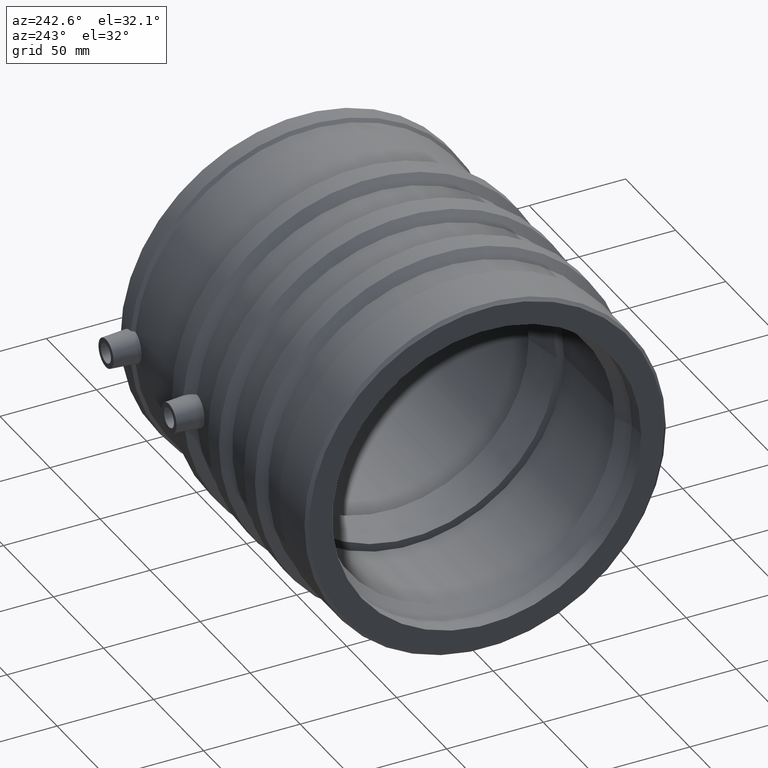
[diagram: clean part render]
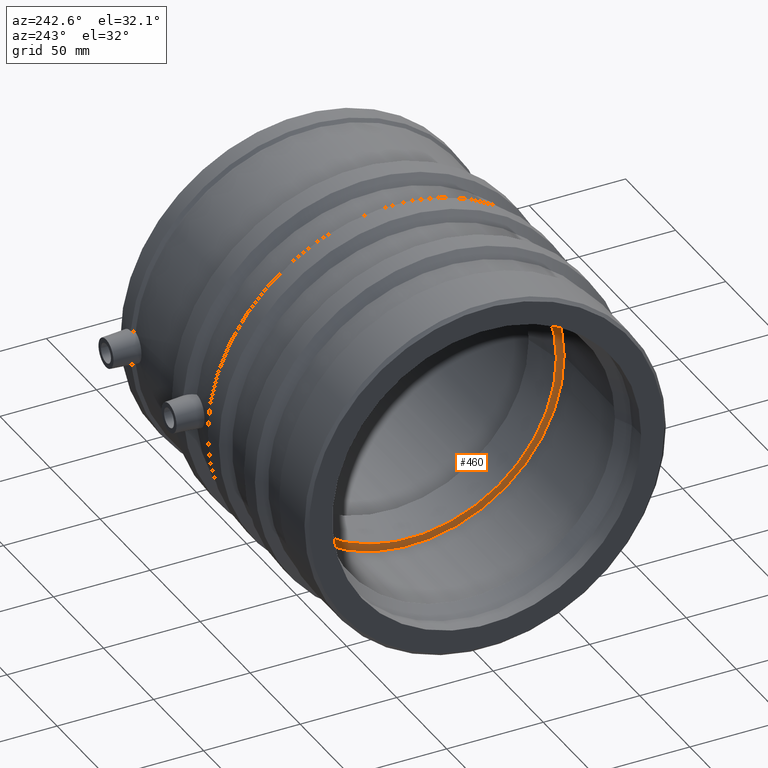
[diagram: same view with one face highlighted and labeled with its STEP entity id]
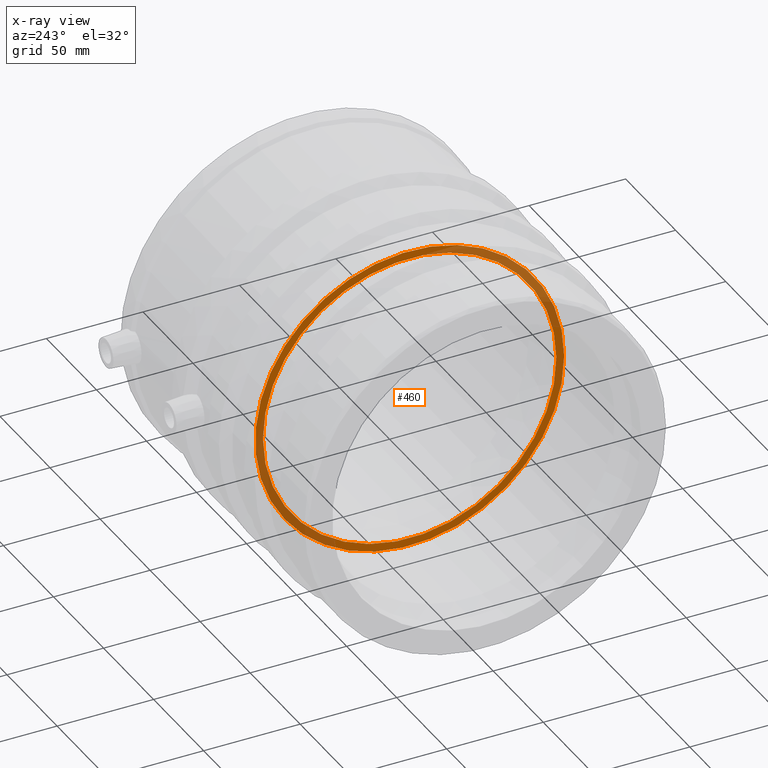
[diagram: x-ray of the same camera — body ghosted, the highlighted face saturated]
A machine part, auxiliary view. The second image highlights one B-rep face of the part: STEP entity #460.
The next image is the same camera in x-ray: the body ghosted, the highlighted face saturated — about 36% of this face is hidden behind the body in this view.
In plain terms, the highlighted planar face has unit normal (-1, -0, 0).
Its self-contained STEP definition (entity closure, byte-faithful):
#52=FACE_BOUND('',#164,.T.);
#107=FACE_OUTER_BOUND('',#163,.T.);
#163=EDGE_LOOP('',(#378));
#164=EDGE_LOOP('',(#379));
#226=CIRCLE('',#520,80.);
#227=CIRCLE('',#522,76.);
#271=VERTEX_POINT('',#879);
#272=VERTEX_POINT('',#882);
#316=EDGE_CURVE('',#271,#271,#226,.T.);
#317=EDGE_CURVE('',#272,#272,#227,.T.);
#378=ORIENTED_EDGE('',*,*,#316,.T.);
#379=ORIENTED_EDGE('',*,*,#317,.F.);
#439=PLANE('',#521);
#460=ADVANCED_FACE('',(#107,#52),#439,.T.);
#520=AXIS2_PLACEMENT_3D('',#880,#636,#637);
#521=AXIS2_PLACEMENT_3D('',#881,#638,#639);
#522=AXIS2_PLACEMENT_3D('',#883,#640,#641);
#636=DIRECTION('center_axis',(-1.,-1.83697019872103E-16,0.));
#637=DIRECTION('ref_axis',(0.,0.,1.));
#638=DIRECTION('center_axis',(-1.,-1.83697019872103E-16,0.));
#639=DIRECTION('ref_axis',(0.,0.,1.));
#640=DIRECTION('center_axis',(-1.,-1.83697019872103E-16,0.));
#641=DIRECTION('ref_axis',(0.,0.,1.));
#879=CARTESIAN_POINT('',(-16.5,-80.,0.));
#880=CARTESIAN_POINT('Origin',(-16.5,1.41446705301519E-14,0.));
#881=CARTESIAN_POINT('Origin',(-16.5,-76.,0.));
#882=CARTESIAN_POINT('',(-16.5,-76.,0.));
#883=CARTESIAN_POINT('Origin',(-16.5,1.41446705301519E-14,0.));